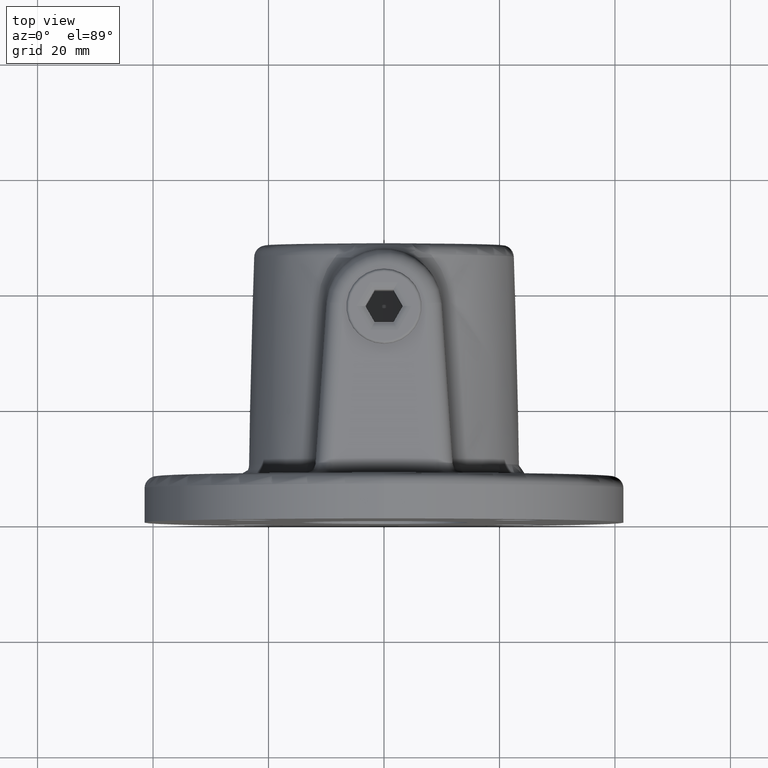
[diagram: clean part render]
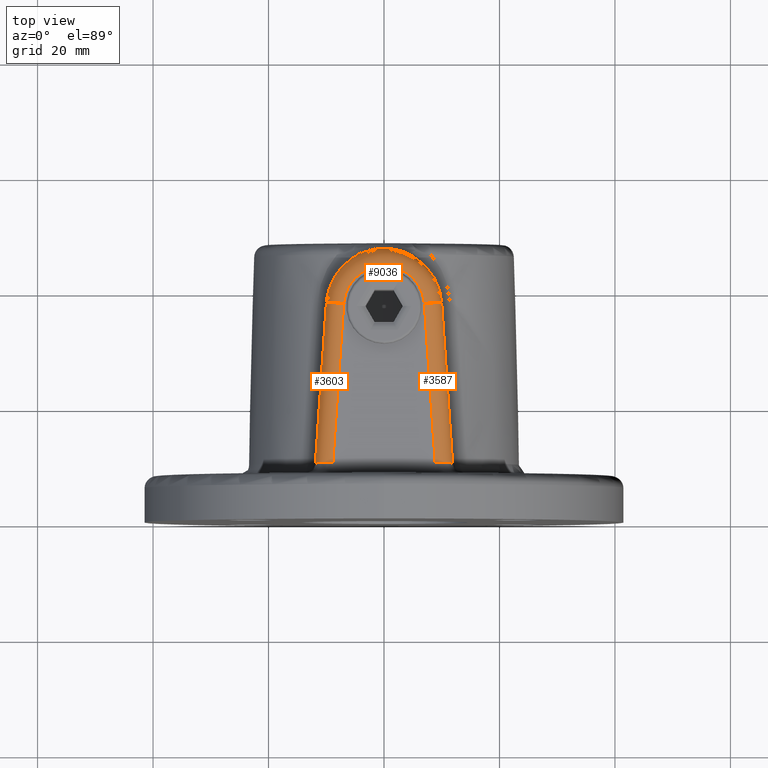
[diagram: same view with one multi-face feature highlighted, each face labeled with its STEP entity id]
A machine part, top view. The highlighted faces form ONE feature: a constant-radius fillet chain: 3 tangent blend faces with common blend radius 3 mm. The faces share edges in the B-rep.
Their STEP definitions:
[1] entity #9036 (Torus):
#141 = DIRECTION ( 'NONE',  ( 0.000000000000000000, 0.000000000000000000, 1.000000000000000000 ) ) ;
#289 = CARTESIAN_POINT ( 'NONE',  ( 0.000000000000000000, 37.00000000000000000, 28.00000000000000000 ) ) ;
#382 = ORIENTED_EDGE ( 'NONE', *, *, #7146, .F. ) ;
#1072 = TOROIDAL_SURFACE ( 'NONE', #5445, 7.000000000000000000, 3.000000000000000000 ) ;
#1109 = AXIS2_PLACEMENT_3D ( 'NONE', #5320, #14094, #9512 ) ;
#1399 = VERTEX_POINT ( 'NONE', #4120 ) ;
#2575 = ORIENTED_EDGE ( 'NONE', *, *, #8639, .T. ) ;
#2795 = FACE_OUTER_BOUND ( 'NONE', #12290, .T. ) ;
#3231 = VERTEX_POINT ( 'NONE', #8481 ) ;
#3522 = CARTESIAN_POINT ( 'NONE',  ( 6.983793665930222438, 37.47605255141940717, 28.00000000000000000 ) ) ;
#3850 = ORIENTED_EDGE ( 'NONE', *, *, #8195, .F. ) ;
#4024 = CIRCLE ( 'NONE', #4404, 7.000000000000000000 ) ;
#4120 = CARTESIAN_POINT ( 'NONE',  ( 9.976848094186030025, 37.68007507345628682, 24.99999999997726263 ) ) ;
#4404 = AXIS2_PLACEMENT_3D ( 'NONE', #289, #141, #8047 ) ;
#5320 = CARTESIAN_POINT ( 'NONE',  ( -6.983793665930220662, 37.47605255141940717, 25.00000000000000000 ) ) ;
#5445 = AXIS2_PLACEMENT_3D ( 'NONE', #12899, #11704, #12751 ) ;
#5721 = CARTESIAN_POINT ( 'NONE',  ( 6.983793665930222438, 37.47605255141940717, 25.00000000000000000 ) ) ;
#5827 = CIRCLE ( 'NONE', #1109, 3.000000000000000000 ) ;
#5890 = CARTESIAN_POINT ( 'NONE',  ( -9.976848094186030025, 37.68007507345628682, 24.99999999997726263 ) ) ;
#6257 = VERTEX_POINT ( 'NONE', #3522 ) ;
#7146 = EDGE_CURVE ( 'NONE', #6257, #3231, #4024, .T. ) ;
#8047 = DIRECTION ( 'NONE',  ( 1.000000000000000000, 0.000000000000000000, 0.000000000000000000 ) ) ;
#8195 = EDGE_CURVE ( 'NONE', #13532, #1399, #13747, .T. ) ;
#8481 = CARTESIAN_POINT ( 'NONE',  ( -6.983793665930220662, 37.47605255141940717, 28.00000000000000000 ) ) ;
#8639 = EDGE_CURVE ( 'NONE', #6257, #1399, #8693, .T. ) ;
#8693 = CIRCLE ( 'NONE', #12476, 3.000000000000000000 ) ;
#9036 = ADVANCED_FACE ( 'NONE', ( #2795 ), #1072, .T. ) ;
#9512 = DIRECTION ( 'NONE',  ( 0.9976848094186031579, -0.06800750734562803490, 0.000000000000000000 ) ) ;
#9592 = CARTESIAN_POINT ( 'NONE',  ( 0.000000000000000000, 37.00000000000000000, 24.99999999997726263 ) ) ;
#10211 = DIRECTION ( 'NONE',  ( -0.06800750734562806266, 0.9976848094186030469, 0.000000000000000000 ) ) ;
#10273 = DIRECTION ( 'NONE',  ( 1.000000000000000000, -6.938893903907228378E-16, 0.000000000000000000 ) ) ;
#10478 = AXIS2_PLACEMENT_3D ( 'NONE', #9592, #14057, #10273 ) ;
#11704 = DIRECTION ( 'NONE',  ( 0.000000000000000000, 0.000000000000000000, 1.000000000000000000 ) ) ;
#12290 = EDGE_LOOP ( 'NONE', ( #2575, #3850, #12813, #382 ) ) ;
#12476 = AXIS2_PLACEMENT_3D ( 'NONE', #5721, #10211, #13362 ) ;
#12751 = DIRECTION ( 'NONE',  ( 1.000000000000000000, 0.000000000000000000, 0.000000000000000000 ) ) ;
#12813 = ORIENTED_EDGE ( 'NONE', *, *, #13312, .F. ) ;
#12899 = CARTESIAN_POINT ( 'NONE',  ( 0.000000000000000000, 37.00000000000000000, 24.99999999997726263 ) ) ;
#13312 = EDGE_CURVE ( 'NONE', #3231, #13532, #5827, .T. ) ;
#13362 = DIRECTION ( 'NONE',  ( -0.9976848094186031579, -0.06800750734562803490, 0.000000000000000000 ) ) ;
#13532 = VERTEX_POINT ( 'NONE', #5890 ) ;
#13747 = CIRCLE ( 'NONE', #10478, 10.00000000000000000 ) ;
#14057 = DIRECTION ( 'NONE',  ( -0.000000000000000000, -0.000000000000000000, -1.000000000000000000 ) ) ;
#14094 = DIRECTION ( 'NONE',  ( -0.06800750734562802102, -0.9976848094186030469, 0.000000000000000000 ) ) ;
[2] entity #3603 (Cylinder):
#49 = CYLINDRICAL_SURFACE ( 'NONE', #8607, 3.000000000000000000 ) ;
#410 = DIRECTION ( 'NONE',  ( 0.06800750734562883981, 0.9976848094186029359, -0.000000000000000000 ) ) ;
#527 = CARTESIAN_POINT ( 'NONE',  ( -10.62357616390406356, 9.920324249080238133, 27.99999999999999289 ) ) ;
#580 = LINE ( 'NONE', #2580, #8669 ) ;
#1109 = AXIS2_PLACEMENT_3D ( 'NONE', #5320, #14094, #9512 ) ;
#1234 = ORIENTED_EDGE ( 'NONE', *, *, #10110, .T. ) ;
#1337 = VERTEX_POINT ( 'NONE', #5221 ) ;
#1699 = CARTESIAN_POINT ( 'NONE',  ( -11.87294086129827164, 9.863984985308743347, 26.75735931288071257 ) ) ;
#2580 = CARTESIAN_POINT ( 'NONE',  ( -6.983793665930224215, 37.47605255141940006, 28.00000000000000000 ) ) ;
#3231 = VERTEX_POINT ( 'NONE', #8481 ) ;
#3603 = ADVANCED_FACE ( 'NONE', ( #13834 ), #49, .T. ) ;
#4226 = ORIENTED_EDGE ( 'NONE', *, *, #9686, .F. ) ;
#5095 = VERTEX_POINT ( 'NONE', #13252 ) ;
#5188 = VECTOR ( 'NONE', #410, 1000.000000000000114 ) ;
#5221 = CARTESIAN_POINT ( 'NONE',  ( -8.856707664499015920, 9.999999999999998224, 28.00000000000000000 ) ) ;
#5242 = EDGE_CURVE ( 'NONE', #3231, #1337, #580, .T. ) ;
#5320 = CARTESIAN_POINT ( 'NONE',  ( -6.983793665930220662, 37.47605255141940717, 25.00000000000000000 ) ) ;
#5827 = CIRCLE ( 'NONE', #1109, 3.000000000000000000 ) ;
#5890 = CARTESIAN_POINT ( 'NONE',  ( -9.976848094186030025, 37.68007507345628682, 24.99999999997726263 ) ) ;
#6207 = CARTESIAN_POINT ( 'NONE',  ( -8.856707664499015920, 9.999999999999998224, 28.00000000000000000 ) ) ;
#7315 = DIRECTION ( 'NONE',  ( -0.06800750734562885369, -0.9976848094186030469, 0.000000000000000000 ) ) ;
#7607 = LINE ( 'NONE', #12415, #5188 ) ;
#8228 =( BOUNDED_CURVE ( )  B_SPLINE_CURVE ( 3, ( #8273, #1699, #527, #6207 ),
 .UNSPECIFIED., .F., .F. ) 
 B_SPLINE_CURVE_WITH_KNOTS ( ( 4, 4 ),
 ( 0.000000000000000000, 1.570796326794896114 ),
 .UNSPECIFIED. ) 
 CURVE ( )  GEOMETRIC_REPRESENTATION_ITEM ( )  RATIONAL_B_SPLINE_CURVE ( ( 1.000000000000000000, 0.8047378541243650485, 0.8047378541243650485, 1.000000000000000000 ) ) 
 REPRESENTATION_ITEM ( '' )  );
#8273 = CARTESIAN_POINT ( 'NONE',  ( -11.87294086129827164, 9.863984985308741571, 24.99999999997726263 ) ) ;
#8403 = DIRECTION ( 'NONE',  ( 0.9976848094186031579, -0.06800750734562803490, 0.000000000000000000 ) ) ;
#8481 = CARTESIAN_POINT ( 'NONE',  ( -6.983793665930220662, 37.47605255141940717, 28.00000000000000000 ) ) ;
#8545 = ORIENTED_EDGE ( 'NONE', *, *, #5242, .F. ) ;
#8607 = AXIS2_PLACEMENT_3D ( 'NONE', #12766, #7315, #8403 ) ;
#8668 = DIRECTION ( 'NONE',  ( -0.06800750734562883981, -0.9976848094186029359, 0.000000000000000000 ) ) ;
#8669 = VECTOR ( 'NONE', #8668, 1000.000000000000114 ) ;
#9427 = EDGE_LOOP ( 'NONE', ( #4226, #1234, #8545, #13416 ) ) ;
#9512 = DIRECTION ( 'NONE',  ( 0.9976848094186031579, -0.06800750734562803490, 0.000000000000000000 ) ) ;
#9686 = EDGE_CURVE ( 'NONE', #5095, #13532, #7607, .T. ) ;
#10110 = EDGE_CURVE ( 'NONE', #5095, #1337, #8228, .T. ) ;
#12415 = CARTESIAN_POINT ( 'NONE',  ( -12.00000000000000000, 8.000000000000003553, 24.99999999997726263 ) ) ;
#12766 = CARTESIAN_POINT ( 'NONE',  ( -6.983793665930222438, 37.47605255141940006, 25.00000000000000000 ) ) ;
#13252 = CARTESIAN_POINT ( 'NONE',  ( -11.87294086129827164, 9.863984985308741571, 24.99999999997726263 ) ) ;
#13312 = EDGE_CURVE ( 'NONE', #3231, #13532, #5827, .T. ) ;
#13416 = ORIENTED_EDGE ( 'NONE', *, *, #13312, .T. ) ;
#13532 = VERTEX_POINT ( 'NONE', #5890 ) ;
#13834 = FACE_OUTER_BOUND ( 'NONE', #9427, .T. ) ;
#14094 = DIRECTION ( 'NONE',  ( -0.06800750734562802102, -0.9976848094186030469, 0.000000000000000000 ) ) ;
[3] entity #3587 (Cylinder):
#1118 = EDGE_CURVE ( 'NONE', #2076, #6257, #2572, .T. ) ;
#1309 = DIRECTION ( 'NONE',  ( -0.9976848094186031579, -0.06800750734562803490, 0.000000000000000000 ) ) ;
#1399 = VERTEX_POINT ( 'NONE', #4120 ) ;
#2076 = VERTEX_POINT ( 'NONE', #4020 ) ;
#2525 = FACE_OUTER_BOUND ( 'NONE', #12503, .T. ) ;
#2572 = LINE ( 'NONE', #12346, #13882 ) ;
#3046 = CYLINDRICAL_SURFACE ( 'NONE', #7871, 3.000000000000000000 ) ;
#3395 = DIRECTION ( 'NONE',  ( -0.06800750734562885369, 0.9976848094186030469, 0.000000000000000000 ) ) ;
#3522 = CARTESIAN_POINT ( 'NONE',  ( 6.983793665930222438, 37.47605255141940717, 28.00000000000000000 ) ) ;
#3587 = ADVANCED_FACE ( 'NONE', ( #2525 ), #3046, .T. ) ;
#3756 = CARTESIAN_POINT ( 'NONE',  ( 11.87294086131166537, 9.863984985308142939, 26.75735931286853742 ) ) ;
#3760 = ORIENTED_EDGE ( 'NONE', *, *, #1118, .F. ) ;
#4020 = CARTESIAN_POINT ( 'NONE',  ( 8.856707664499015920, 9.999999999999994671, 28.00000000000000000 ) ) ;
#4120 = CARTESIAN_POINT ( 'NONE',  ( 9.976848094186030025, 37.68007507345628682, 24.99999999997726263 ) ) ;
#4812 = ORIENTED_EDGE ( 'NONE', *, *, #8065, .T. ) ;
#5721 = CARTESIAN_POINT ( 'NONE',  ( 6.983793665930222438, 37.47605255141940717, 25.00000000000000000 ) ) ;
#6257 = VERTEX_POINT ( 'NONE', #3522 ) ;
#6543 = ORIENTED_EDGE ( 'NONE', *, *, #6803, .F. ) ;
#6803 = EDGE_CURVE ( 'NONE', #1399, #10872, #12071, .T. ) ;
#7643 = CARTESIAN_POINT ( 'NONE',  ( 12.00000000000000000, 8.000000000000003553, 24.99999999997726263 ) ) ;
#7871 = AXIS2_PLACEMENT_3D ( 'NONE', #13361, #3395, #1309 ) ;
#8065 = EDGE_CURVE ( 'NONE', #2076, #10872, #9481, .T. ) ;
#8194 = CARTESIAN_POINT ( 'NONE',  ( 8.856707664499015920, 9.999999999999994671, 28.00000000000000000 ) ) ;
#8639 = EDGE_CURVE ( 'NONE', #6257, #1399, #8693, .T. ) ;
#8650 = ORIENTED_EDGE ( 'NONE', *, *, #8639, .F. ) ;
#8693 = CIRCLE ( 'NONE', #12476, 3.000000000000000000 ) ;
#9481 =( BOUNDED_CURVE ( )  B_SPLINE_CURVE ( 3, ( #8194, #12598, #3756, #13694 ),
 .UNSPECIFIED., .F., .F. ) 
 B_SPLINE_CURVE_WITH_KNOTS ( ( 4, 4 ),
 ( 1.570796326794897668, 3.141592653597372387 ),
 .UNSPECIFIED. ) 
 CURVE ( )  GEOMETRIC_REPRESENTATION_ITEM ( )  RATIONAL_B_SPLINE_CURVE ( ( 1.000000000000000000, 0.8047378541225788107, 0.8047378541225788107, 1.000000000000000000 ) ) 
 REPRESENTATION_ITEM ( '' )  );
#10211 = DIRECTION ( 'NONE',  ( -0.06800750734562806266, 0.9976848094186030469, 0.000000000000000000 ) ) ;
#10872 = VERTEX_POINT ( 'NONE', #11732 ) ;
#11610 = DIRECTION ( 'NONE',  ( 0.06800750734562883981, -0.9976848094186029359, -0.000000000000000000 ) ) ;
#11732 = CARTESIAN_POINT ( 'NONE',  ( 11.87294086129827164, 9.863984985308741571, 24.99999999997726263 ) ) ;
#12071 = LINE ( 'NONE', #7643, #12578 ) ;
#12346 = CARTESIAN_POINT ( 'NONE',  ( 6.983793665930223327, 37.47605255141940006, 28.00000000000000000 ) ) ;
#12476 = AXIS2_PLACEMENT_3D ( 'NONE', #5721, #10211, #13362 ) ;
#12485 = DIRECTION ( 'NONE',  ( -0.06800750734562883981, 0.9976848094186029359, 0.000000000000000000 ) ) ;
#12503 = EDGE_LOOP ( 'NONE', ( #3760, #4812, #6543, #8650 ) ) ;
#12578 = VECTOR ( 'NONE', #11610, 1000.000000000000114 ) ;
#12598 = CARTESIAN_POINT ( 'NONE',  ( 10.62357616391468262, 9.920324249079760293, 28.00000000000000000 ) ) ;
#13361 = CARTESIAN_POINT ( 'NONE',  ( 6.983793665930222438, 37.47605255141940006, 25.00000000000000000 ) ) ;
#13362 = DIRECTION ( 'NONE',  ( -0.9976848094186031579, -0.06800750734562803490, 0.000000000000000000 ) ) ;
#13694 = CARTESIAN_POINT ( 'NONE',  ( 11.87294086129827164, 9.863984985308741571, 24.99999999997726263 ) ) ;
#13882 = VECTOR ( 'NONE', #12485, 1000.000000000000114 ) ;